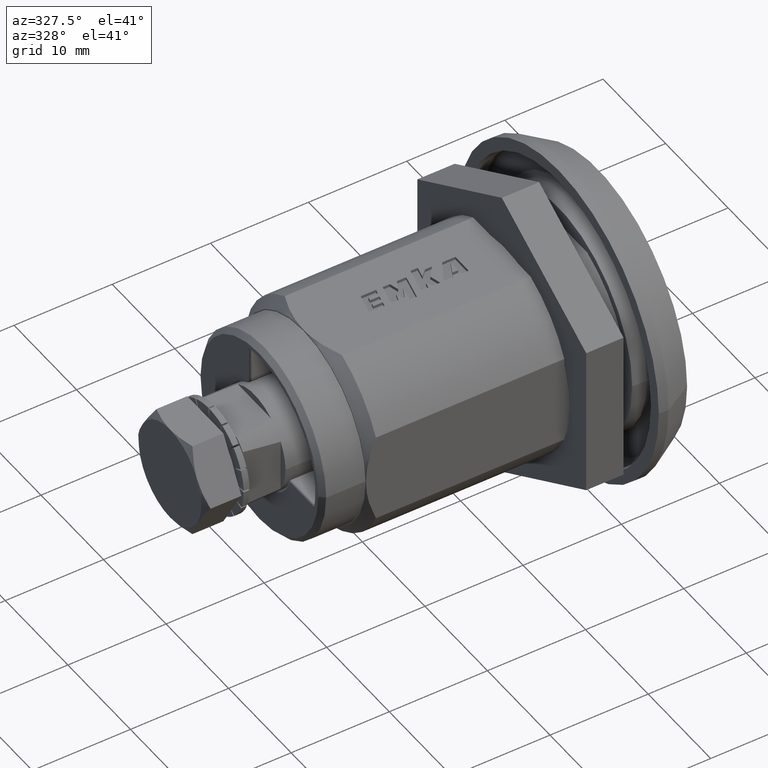
[diagram: clean part render]
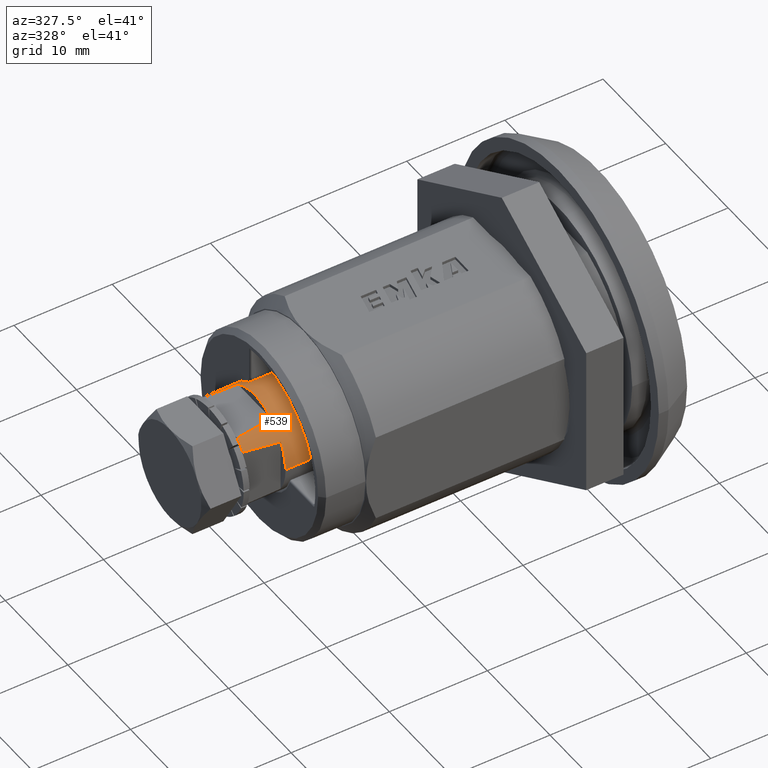
[diagram: same view with one face highlighted and labeled with its STEP entity id]
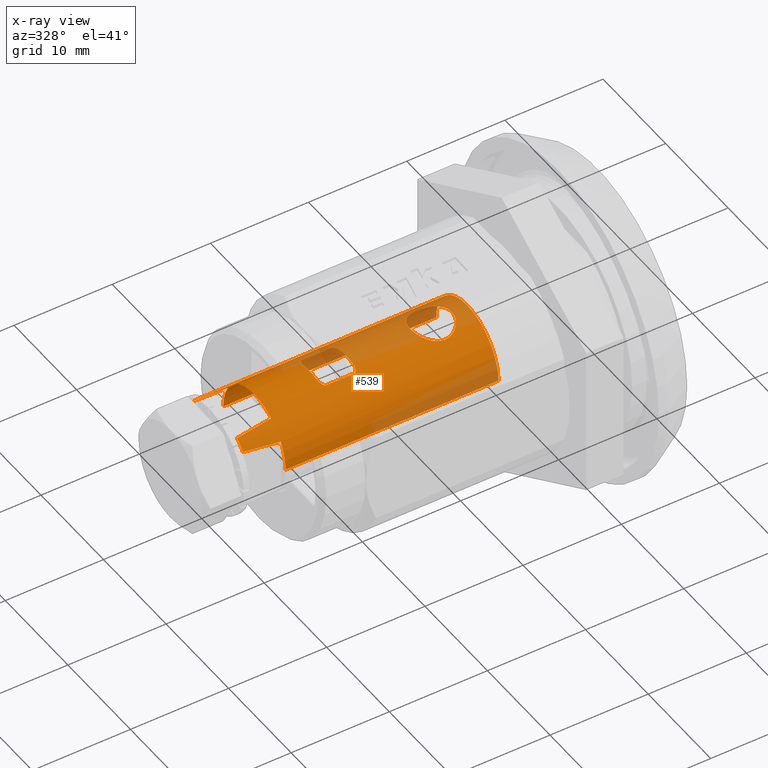
[diagram: x-ray of the same camera — body ghosted, the highlighted face saturated]
A machine part, auxiliary view. The second image highlights one B-rep face of the part: STEP entity #539.
The next image is the same camera in x-ray: the body ghosted, the highlighted face saturated — about 29% of this face is hidden behind the body in this view.
In plain terms, the highlighted cylindrical surface (partial cylindrical patch) has radius 4.975 mm, axis along (1, -0, 0).
Its self-contained STEP definition (entity closure, byte-faithful):
#539=ADVANCED_FACE('',(#3458,#3459,#3460),#3457,.T.);
#3457=CYLINDRICAL_SURFACE('',#7321,4.97500000000E+00);
#3458=FACE_OUTER_BOUND('',#7322,.T.);
#3459=FACE_BOUND('',#7323,.T.);
#3460=FACE_BOUND('',#7324,.T.);
#7318=CARTESIAN_POINT('',(0.00000000000E+00,0.00000000000E+00,1.30000003874E+01));
#7319=DIRECTION('',(-0.00000000000E+00,-0.00000000000E+00,-1.00000000000E+00));
#7320=DIRECTION('',(9.99961923064E-01,8.72653549837E-03,0.00000000000E+00));
#7321=AXIS2_PLACEMENT_3D('',#7318,#7319,#7320);
#7322=EDGE_LOOP('',(#9858,#9859,#9860,#9861,#9862,#9863,#9864,#9865,#9866,#9867,#9868,#9869,#9870));
#7323=EDGE_LOOP('',(#9871,#9872));
#7324=EDGE_LOOP('',(#9873,#9874,#9875,#9876,#9877,#9878,#9879,#9880));
#9858=ORIENTED_EDGE('',*,*,#11146,.T.);
#9859=ORIENTED_EDGE('',*,*,#11151,.T.);
#9860=ORIENTED_EDGE('',*,*,#11152,.F.);
#9861=ORIENTED_EDGE('',*,*,#11069,.F.);
#9862=ORIENTED_EDGE('',*,*,#11071,.F.);
#9863=ORIENTED_EDGE('',*,*,#11053,.F.);
#9864=ORIENTED_EDGE('',*,*,#11048,.F.);
#9865=ORIENTED_EDGE('',*,*,#11095,.F.);
#9866=ORIENTED_EDGE('',*,*,#11046,.F.);
#9867=ORIENTED_EDGE('',*,*,#11052,.F.);
#9868=ORIENTED_EDGE('',*,*,#11065,.F.);
#9869=ORIENTED_EDGE('',*,*,#11067,.F.);
#9870=ORIENTED_EDGE('',*,*,#11153,.T.);
#9871=ORIENTED_EDGE('',*,*,#11088,.T.);
#9872=ORIENTED_EDGE('',*,*,#11085,.T.);
#9873=ORIENTED_EDGE('',*,*,#11133,.T.);
#9874=ORIENTED_EDGE('',*,*,#11138,.T.);
#9875=ORIENTED_EDGE('',*,*,#11139,.T.);
#9876=ORIENTED_EDGE('',*,*,#11142,.F.);
#9877=ORIENTED_EDGE('',*,*,#11110,.T.);
#9878=ORIENTED_EDGE('',*,*,#11108,.T.);
#9879=ORIENTED_EDGE('',*,*,#11100,.T.);
#9880=ORIENTED_EDGE('',*,*,#11098,.F.);
#11046=EDGE_CURVE('',#15629,#15630,#15631,.T.);
#11048=EDGE_CURVE('',#15637,#15644,#15645,.T.);
#11052=EDGE_CURVE('',#15665,#15629,#15672,.T.);
#11053=EDGE_CURVE('',#15644,#15678,#15679,.T.);
#11065=EDGE_CURVE('',#15752,#15665,#15759,.T.);
#11067=EDGE_CURVE('',#15765,#15752,#15772,.T.);
#11069=EDGE_CURVE('',#15779,#15786,#15787,.T.);
#11071=EDGE_CURVE('',#15678,#15779,#15799,.T.);
#11085=EDGE_CURVE('',#15865,#15887,#15894,.T.);
#11088=EDGE_CURVE('',#15887,#15865,#15913,.T.);
#11095=EDGE_CURVE('',#15630,#15637,#15961,.T.);
#11098=EDGE_CURVE('',#15975,#15982,#15983,.T.);
#11100=EDGE_CURVE('',#15995,#15982,#15996,.T.);
#11108=EDGE_CURVE('',#16049,#15995,#16050,.T.);
#11110=EDGE_CURVE('',#16062,#16049,#16063,.T.);
#11133=EDGE_CURVE('',#15975,#16212,#16213,.T.);
#11138=EDGE_CURVE('',#16212,#16239,#16246,.T.);
#11139=EDGE_CURVE('',#16239,#16252,#16253,.T.);
#11142=EDGE_CURVE('',#16062,#16252,#16271,.T.);
#11146=EDGE_CURVE('',#16295,#16296,#16297,.T.);
#11151=EDGE_CURVE('',#16296,#16322,#16329,.T.);
#11152=EDGE_CURVE('',#15786,#16322,#16335,.T.);
#11153=EDGE_CURVE('',#15765,#16295,#16341,.T.);
#15629=VERTEX_POINT('',#21046);
#15630=VERTEX_POINT('',#21047);
#15631=(BOUNDED_CURVE() B_SPLINE_CURVE(3,(#21048,#21049,#21050,#21051),.UNSPECIFIED.,.F.,.F.) B_SPLINE_CURVE_WITH_KNOTS((4,4),(0.00000000000E+00,1.00000000000E+00),.UNSPECIFIED.) CURVE() GEOMETRIC_REPRESENTATION_ITEM() RATIONAL_B_SPLINE_CURVE((1.00000000000E+00,1.00000000000E+00,1.00000000000E+00,1.00000000000E+00)) REPRESENTATION_ITEM('') );
#15637=VERTEX_POINT('',#21052);
#15644=VERTEX_POINT('',#21056);
#15645=(BOUNDED_CURVE() B_SPLINE_CURVE(3,(#21057,#21058,#21059,#21060),.UNSPECIFIED.,.F.,.F.) B_SPLINE_CURVE_WITH_KNOTS((4,4),(0.00000000000E+00,1.00000000000E+00),.UNSPECIFIED.) CURVE() GEOMETRIC_REPRESENTATION_ITEM() RATIONAL_B_SPLINE_CURVE((1.00000000000E+00,1.00000000000E+00,1.00000000000E+00,1.00000000000E+00)) REPRESENTATION_ITEM('') );
#15665=VERTEX_POINT('',#21070);
#15672=CIRCLE('',#21077,4.97500000000E+00);
#15678=VERTEX_POINT('',#21078);
#15679=CIRCLE('',#21082,4.97500000000E+00);
#15752=VERTEX_POINT('',#21127);
#15759=(BOUNDED_CURVE() B_SPLINE_CURVE(3,(#21131,#21132,#21133,#21134),.UNSPECIFIED.,.F.,.F.) B_SPLINE_CURVE_WITH_KNOTS((4,4),(0.00000000000E+00,1.00000000000E+00),.UNSPECIFIED.) CURVE() GEOMETRIC_REPRESENTATION_ITEM() RATIONAL_B_SPLINE_CURVE((1.00000000000E+00,1.00000000000E+00,1.00000000000E+00,1.00000000000E+00)) REPRESENTATION_ITEM('') );
#15765=VERTEX_POINT('',#21135);
#15772=CIRCLE('',#21143,4.97500000000E+00);
#15779=VERTEX_POINT('',#21145);
#15786=VERTEX_POINT('',#21149);
#15787=CIRCLE('',#21153,4.97500000000E+00);
#15799=(BOUNDED_CURVE() B_SPLINE_CURVE(3,(#21158,#21159,#21160,#21161),.UNSPECIFIED.,.F.,.F.) B_SPLINE_CURVE_WITH_KNOTS((4,4),(0.00000000000E+00,1.00000000000E+00),.UNSPECIFIED.) CURVE() GEOMETRIC_REPRESENTATION_ITEM() RATIONAL_B_SPLINE_CURVE((1.00000000000E+00,1.00000000000E+00,1.00000000000E+00,1.00000000000E+00)) REPRESENTATION_ITEM('') );
#15865=VERTEX_POINT('',#21266);
#15887=VERTEX_POINT('',#21297);
#15894=(BOUNDED_CURVE() B_SPLINE_CURVE(3,(#21301,#21302,#21303,#21304,#21305,#21306,#21307,#21308,#21309,#21310,#21311,#21312,#21313,#21314,#21315,#21316,#21317,#21318,#21319,#21320),.UNSPECIFIED.,.F.,.F.) B_SPLINE_CURVE_WITH_KNOTS((4,1,1,1,1,1,1,1,1,1,1,1,1,1,1,1,1,4),(0.00000000000E+00,5.88235294118E-02,1.17647058824E-01,1.76470588235E-01,2.35294117647E-01,2.94117647059E-01,3.52941176471E-01,4.11764705882E-01,4.70588235294E-01,5.29411764706E-01,5.88235294118E-01,6.47058823529E-01,7.05882352941E-01,7.64705882353E-01,8.23529411765E-01,8.82352941176E-01,9.41176470588E-01,1.00000000000E+00),.UNSPECIFIED.) CURVE() GEOMETRIC_REPRESENTATION_ITEM() RATIONAL_B_SPLINE_CURVE((1.00000000000E+00,1.00000000000E+00,1.00000000000E+00,1.00000000000E+00,1.00000000000E+00,1.00000000000E+00,1.00000000000E+00,1.00000000000E+00,1.00000000000E+00,1.00000000000E+00,1.00000000000E+00,1.00000000000E+00,1.00000000000E+00,1.00000000000E+00,1.00000000000E+00,1.00000000000E+00,1.00000000000E+00,1.00000000000E+00,1.00000000000E+00,1.00000000000E+00)) REPRESENTATION_ITEM('') );
#15913=(BOUNDED_CURVE() B_SPLINE_CURVE(3,(#21346,#21347,#21348,#21349,#21350,#21351,#21352,#21353,#21354,#21355,#21356,#21357,#21358,#21359,#21360,#21361,#21362,#21363,#21364,#21365),.UNSPECIFIED.,.F.,.F.) B_SPLINE_CURVE_WITH_KNOTS((4,1,1,1,1,1,1,1,1,1,1,1,1,1,1,1,1,4),(0.00000000000E+00,5.88235294118E-02,1.17647058824E-01,1.76470588235E-01,2.35294117647E-01,2.94117647059E-01,3.52941176471E-01,4.11764705882E-01,4.70588235294E-01,5.29411764706E-01,5.88235294118E-01,6.47058823529E-01,7.05882352941E-01,7.64705882353E-01,8.23529411765E-01,8.82352941176E-01,9.41176470588E-01,1.00000000000E+00),.UNSPECIFIED.) CURVE() GEOMETRIC_REPRESENTATION_ITEM() RATIONAL_B_SPLINE_CURVE((1.00000000000E+00,1.00000000000E+00,1.00000000000E+00,1.00000000000E+00,1.00000000000E+00,1.00000000000E+00,1.00000000000E+00,1.00000000000E+00,1.00000000000E+00,1.00000000000E+00,1.00000000000E+00,1.00000000000E+00,1.00000000000E+00,1.00000000000E+00,1.00000000000E+00,1.00000000000E+00,1.00000000000E+00,1.00000000000E+00,1.00000000000E+00,1.00000000000E+00)) REPRESENTATION_ITEM('') );
#15961=CIRCLE('',#21399,4.97500000000E+00);
#15975=VERTEX_POINT('',#21405);
#15982=VERTEX_POINT('',#21410);
#15983=LINE('',#21411,#21412);
#15995=VERTEX_POINT('',#21418);
#15996=(BOUNDED_CURVE() B_SPLINE_CURVE(3,(#21419,#21420,#21421,#21422,#21423,#21424,#21425,#21426),.UNSPECIFIED.,.F.,.F.) B_SPLINE_CURVE_WITH_KNOTS((4,1,1,1,1,4),(0.00000000000E+00,2.00000000000E-01,4.00000000000E-01,6.00000000000E-01,8.00000000000E-01,1.00000000000E+00),.UNSPECIFIED.) CURVE() GEOMETRIC_REPRESENTATION_ITEM() RATIONAL_B_SPLINE_CURVE((1.00000000000E+00,1.00000000000E+00,1.00000000000E+00,1.00000000000E+00,1.00000000000E+00,1.00000000000E+00,1.00000000000E+00,1.00000000000E+00)) REPRESENTATION_ITEM('') );
#16049=VERTEX_POINT('',#21456);
#16050=CIRCLE('',#21460,4.97500000000E+00);
#16062=VERTEX_POINT('',#21465);
#16063=(BOUNDED_CURVE() B_SPLINE_CURVE(3,(#21466,#21467,#21468,#21469,#21470,#21471,#21472,#21473),.UNSPECIFIED.,.F.,.F.) B_SPLINE_CURVE_WITH_KNOTS((4,1,1,1,1,4),(0.00000000000E+00,2.00000000000E-01,4.00000000000E-01,6.00000000000E-01,8.00000000000E-01,1.00000000000E+00),.UNSPECIFIED.) CURVE() GEOMETRIC_REPRESENTATION_ITEM() RATIONAL_B_SPLINE_CURVE((1.00000000000E+00,1.00000000000E+00,1.00000000000E+00,1.00000000000E+00,1.00000000000E+00,1.00000000000E+00,1.00000000000E+00,1.00000000000E+00)) REPRESENTATION_ITEM('') );
#16212=VERTEX_POINT('',#21562);
#16213=(BOUNDED_CURVE() B_SPLINE_CURVE(3,(#21563,#21564,#21565,#21566,#21567,#21568,#21569,#21570),.UNSPECIFIED.,.F.,.F.) B_SPLINE_CURVE_WITH_KNOTS((4,1,1,1,1,4),(0.00000000000E+00,2.00000000000E-01,4.00000000000E-01,6.00000000000E-01,8.00000000000E-01,1.00000000000E+00),.UNSPECIFIED.) CURVE() GEOMETRIC_REPRESENTATION_ITEM() RATIONAL_B_SPLINE_CURVE((1.00000000000E+00,1.00000000000E+00,1.00000000000E+00,1.00000000000E+00,1.00000000000E+00,1.00000000000E+00,1.00000000000E+00,1.00000000000E+00)) REPRESENTATION_ITEM('') );
#16239=VERTEX_POINT('',#21583);
#16246=CIRCLE('',#21591,4.97500000000E+00);
#16252=VERTEX_POINT('',#21592);
#16253=(BOUNDED_CURVE() B_SPLINE_CURVE(3,(#21593,#21594,#21595,#21596,#21597,#21598,#21599,#21600),.UNSPECIFIED.,.F.,.F.) B_SPLINE_CURVE_WITH_KNOTS((4,1,1,1,1,4),(0.00000000000E+00,2.00000000000E-01,4.00000000000E-01,6.00000000000E-01,8.00000000000E-01,1.00000000000E+00),.UNSPECIFIED.) CURVE() GEOMETRIC_REPRESENTATION_ITEM() RATIONAL_B_SPLINE_CURVE((1.00000000000E+00,1.00000000000E+00,1.00000000000E+00,1.00000000000E+00,1.00000000000E+00,1.00000000000E+00,1.00000000000E+00,1.00000000000E+00)) REPRESENTATION_ITEM('') );
#16271=LINE('',#21609,#21610);
#16295=VERTEX_POINT('',#21624);
#16296=VERTEX_POINT('',#21625);
#16297=(BOUNDED_CURVE() B_SPLINE_CURVE(2,(#21626,#21627,#21628,#21629,#21630),.UNSPECIFIED.,.F.,.F.) B_SPLINE_CURVE_WITH_KNOTS((3,2,3),(5.61577934159E-04,5.00000000000E-01,1.00000000000E+00),.UNSPECIFIED.) CURVE() GEOMETRIC_REPRESENTATION_ITEM() RATIONAL_B_SPLINE_CURVE((1.00000000000E+00,7.08086643762E-01,1.00000000000E+00,7.08086643762E-01,1.00000000000E+00)) REPRESENTATION_ITEM('') );
#16322=VERTEX_POINT('',#21639);
#16329=(BOUNDED_CURVE() B_SPLINE_CURVE(2,(#21644,#21645,#21646),.UNSPECIFIED.,.F.,.F.) B_SPLINE_CURVE_WITH_KNOTS((3,3),(0.00000000000E+00,1.00000000000E+00),.UNSPECIFIED.) CURVE() GEOMETRIC_REPRESENTATION_ITEM() RATIONAL_B_SPLINE_CURVE((1.00000000000E+00,9.99993640015E-01,1.00000000000E+00)) REPRESENTATION_ITEM('') );
#16335=(BOUNDED_CURVE() B_SPLINE_CURVE(1,(#21647,#21648),.UNSPECIFIED.,.F.,.F.) B_SPLINE_CURVE_WITH_KNOTS((2,2),(2.04724408687E-01,9.16666665745E-01),.UNSPECIFIED.) CURVE() GEOMETRIC_REPRESENTATION_ITEM() RATIONAL_B_SPLINE_CURVE((1.00000000000E+00,1.00000000000E+00)) REPRESENTATION_ITEM('') );
#16341=(BOUNDED_CURVE() B_SPLINE_CURVE(1,(#21649,#21650),.UNSPECIFIED.,.F.,.F.) B_SPLINE_CURVE_WITH_KNOTS((2,2),(2.04724409449E-01,9.16666666667E-01),.UNSPECIFIED.) CURVE() GEOMETRIC_REPRESENTATION_ITEM() RATIONAL_B_SPLINE_CURVE((7.50000000000E-01,7.50000000000E-01)) REPRESENTATION_ITEM('') );
#21046=CARTESIAN_POINT('',(-3.02458674863E+00,-3.95000000000E+00,2.57000000000E+01));
#21047=CARTESIAN_POINT('',(-2.66657551928E+00,-4.20000000000E+00,2.20000000000E+01));
#21048=CARTESIAN_POINT('',(-3.02458674863E+00,-3.95000000000E+00,2.57000000000E+01));
#21049=CARTESIAN_POINT('',(-2.91566739411E+00,-4.03340152819E+00,2.44656573828E+01));
#21050=CARTESIAN_POINT('',(-2.79770838662E+00,-4.11674388242E+00,2.32321905402E+01));
#21051=CARTESIAN_POINT('',(-2.66657551928E+00,-4.20000000000E+00,2.20000000000E+01));
#21052=CARTESIAN_POINT('',(2.66657551928E+00,-4.20000000000E+00,2.20000000000E+01));
#21056=CARTESIAN_POINT('',(3.02458674863E+00,-3.95000000000E+00,2.57000000000E+01));
#21057=CARTESIAN_POINT('',(2.66657551928E+00,-4.20000000000E+00,2.20000000000E+01));
#21058=CARTESIAN_POINT('',(2.79770838662E+00,-4.11674388242E+00,2.32321905402E+01));
#21059=CARTESIAN_POINT('',(2.91566739411E+00,-4.03340152819E+00,2.44656573828E+01));
#21060=CARTESIAN_POINT('',(3.02458674863E+00,-3.95000000000E+00,2.57000000000E+01));
#21070=CARTESIAN_POINT('',(-3.95000000000E+00,-3.02458674863E+00,2.57000000000E+01));
#21074=CARTESIAN_POINT('',(0.00000000000E+00,0.00000000000E+00,2.57000000000E+01));
#21075=DIRECTION('',(0.00000000000E+00,0.00000000000E+00,1.00000000000E+00));
#21076=DIRECTION('',(7.93969849246E-01,6.07957135403E-01,-0.00000000000E+00));
#21077=AXIS2_PLACEMENT_3D('',#21074,#21075,#21076);
#21078=CARTESIAN_POINT('',(3.95000000000E+00,-3.02458674863E+00,2.57000000000E+01));
#21079=CARTESIAN_POINT('',(0.00000000000E+00,0.00000000000E+00,2.57000000000E+01));
#21080=DIRECTION('',(0.00000000000E+00,0.00000000000E+00,1.00000000000E+00));
#21081=DIRECTION('',(-6.07957135403E-01,7.93969849246E-01,-0.00000000000E+00));
#21082=AXIS2_PLACEMENT_3D('',#21079,#21080,#21081);
#21127=CARTESIAN_POINT('',(-4.20000000000E+00,-2.66657551928E+00,2.20000000000E+01));
#21131=CARTESIAN_POINT('',(-4.20000000000E+00,-2.66657551928E+00,2.20000000000E+01));
#21132=CARTESIAN_POINT('',(-4.11674388242E+00,-2.79770838662E+00,2.32321905402E+01));
#21133=CARTESIAN_POINT('',(-4.03340152819E+00,-2.91566739411E+00,2.44656573828E+01));
#21134=CARTESIAN_POINT('',(-3.95000000000E+00,-3.02458674863E+00,2.57000000000E+01));
#21135=CARTESIAN_POINT('',(-4.97477722261E+00,-4.70806268258E-02,2.20000000000E+01));
#21140=CARTESIAN_POINT('',(0.00000000000E+00,0.00000000000E+00,2.20000000000E+01));
#21141=DIRECTION('',(0.00000000000E+00,0.00000000000E+00,1.00000000000E+00));
#21142=DIRECTION('',(1.00000000000E+00,-0.00000000000E+00,-0.00000000000E+00));
#21143=AXIS2_PLACEMENT_3D('',#21140,#21141,#21142);
#21145=CARTESIAN_POINT('',(4.20000000000E+00,-2.66657551928E+00,2.20000000000E+01));
#21149=CARTESIAN_POINT('',(4.97481057446E+00,4.34136875900E-02,2.20000000000E+01));
#21150=CARTESIAN_POINT('',(0.00000000000E+00,0.00000000000E+00,2.20000000000E+01));
#21151=DIRECTION('',(0.00000000000E+00,0.00000000000E+00,1.00000000000E+00));
#21152=DIRECTION('',(-8.44221105528E-01,5.35995079251E-01,-0.00000000000E+00));
#21153=AXIS2_PLACEMENT_3D('',#21150,#21151,#21152);
#21158=CARTESIAN_POINT('',(3.95000000000E+00,-3.02458674863E+00,2.57000000000E+01));
#21159=CARTESIAN_POINT('',(4.03340152819E+00,-2.91566739411E+00,2.44656573828E+01));
#21160=CARTESIAN_POINT('',(4.11674388242E+00,-2.79770838662E+00,2.32321905402E+01));
#21161=CARTESIAN_POINT('',(4.20000000000E+00,-2.66657551928E+00,2.20000000000E+01));
#21266=CARTESIAN_POINT('',(-5.73724372865E-11,-4.97500126761E+00,1.90000126757E+00));
#21297=CARTESIAN_POINT('',(3.29380960220E-09,-4.97500848081E+00,6.09999151922E+00));
#21301=CARTESIAN_POINT('',(-5.73724372865E-11,-4.97500126761E+00,1.90000126757E+00));
#21302=CARTESIAN_POINT('',(-1.37568317398E-01,-4.97500126761E+00,1.90000107855E+00));
#21303=CARTESIAN_POINT('',(-4.10586538262E-01,-4.96374077446E+00,1.92338648402E+00));
#21304=CARTESIAN_POINT('',(-8.18666564177E-01,-4.91269444534E+00,2.03238563555E+00));
#21305=CARTESIAN_POINT('',(-1.19971303472E+00,-4.83305534836E+00,2.21297200934E+00));
#21306=CARTESIAN_POINT('',(-1.54486239635E+00,-4.73305505268E+00,2.46394636339E+00));
#21307=CARTESIAN_POINT('',(-1.83145473327E+00,-4.62815727262E+00,2.77452778228E+00));
#21308=CARTESIAN_POINT('',(-2.03821655520E+00,-4.53953579374E+00,3.11149758889E+00));
#21309=CARTESIAN_POINT('',(-2.17212638335E+00,-4.47618821600E+00,3.46292164819E+00));
#21310=CARTESIAN_POINT('',(-2.23720683942E+00,-4.44360911709E+00,3.81899326521E+00));
#21311=CARTESIAN_POINT('',(-2.23770816473E+00,-4.44335688616E+00,4.17515807621E+00));
#21312=CARTESIAN_POINT('',(-2.17384252574E+00,-4.47533319887E+00,4.53078569551E+00));
#21313=CARTESIAN_POINT('',(-2.04069890136E+00,-4.53845756657E+00,4.88431296954E+00));
#21314=CARTESIAN_POINT('',(-1.83095528406E+00,-4.62835238794E+00,5.22606933600E+00));
#21315=CARTESIAN_POINT('',(-1.54829480454E+00,-4.73181464313E+00,5.53251872302E+00));
#21316=CARTESIAN_POINT('',(-1.20488827159E+00,-4.83184469589E+00,5.78426745946E+00));
#21317=CARTESIAN_POINT('',(-8.18662704833E-01,-4.91280280169E+00,5.96783503931E+00));
#21318=CARTESIAN_POINT('',(-4.09829786213E-01,-4.96378725553E+00,6.07678116816E+00));
#21319=CARTESIAN_POINT('',(-1.37064657151E-01,-4.97500848081E+00,6.09993911281E+00));
#21320=CARTESIAN_POINT('',(3.29380960220E-09,-4.97500848081E+00,6.09999151922E+00));
#21346=CARTESIAN_POINT('',(3.29380960220E-09,-4.97500848081E+00,6.09999151922E+00));
#21347=CARTESIAN_POINT('',(1.37712450098E-01,-4.97500848081E+00,6.09999382448E+00));
#21348=CARTESIAN_POINT('',(4.11014816827E-01,-4.96371515751E+00,6.07656921281E+00));
#21349=CARTESIAN_POINT('',(8.19555308685E-01,-4.91255766076E+00,5.96731693372E+00));
#21350=CARTESIAN_POINT('',(1.20092152392E+00,-4.83276639090E+00,5.78635602229E+00));
#21351=CARTESIAN_POINT('',(1.54648712000E+00,-4.73253064201E+00,5.53466851390E+00));
#21352=CARTESIAN_POINT('',(1.83298628065E+00,-4.62754517109E+00,5.22347224704E+00));
#21353=CARTESIAN_POINT('',(2.03938868202E+00,-4.53900363613E+00,4.88614226774E+00));
#21354=CARTESIAN_POINT('',(2.17288985722E+00,-4.47581389365E+00,4.53439504041E+00));
#21355=CARTESIAN_POINT('',(2.23755898949E+00,-4.44343072994E+00,4.17776913586E+00));
#21356=CARTESIAN_POINT('',(2.23738436270E+00,-4.44351973292E+00,3.82022580648E+00));
#21357=CARTESIAN_POINT('',(2.17230853783E+00,-4.47610003492E+00,3.46345099351E+00));
#21358=CARTESIAN_POINT('',(2.03833988109E+00,-4.53948152312E+00,3.11175696164E+00));
#21359=CARTESIAN_POINT('',(1.83167627887E+00,-4.62806254117E+00,2.77482978534E+00));
#21360=CARTESIAN_POINT('',(1.54566148268E+00,-4.73277809954E+00,2.46475806683E+00));
#21361=CARTESIAN_POINT('',(1.20087937664E+00,-4.83277039250E+00,2.21362245528E+00));
#21362=CARTESIAN_POINT('',(8.19360221910E-01,-4.91258844921E+00,2.03261709910E+00));
#21363=CARTESIAN_POINT('',(4.11170825110E-01,-4.96369867640E+00,1.92346749051E+00));
#21364=CARTESIAN_POINT('',(1.37781936584E-01,-4.97500126761E+00,1.90000776704E+00));
#21365=CARTESIAN_POINT('',(-5.73724372865E-11,-4.97500126761E+00,1.90000126757E+00));
#21396=CARTESIAN_POINT('',(0.00000000000E+00,0.00000000000E+00,2.20000000000E+01));
#21397=DIRECTION('',(0.00000000000E+00,0.00000000000E+00,1.00000000000E+00));
#21398=DIRECTION('',(5.35995079251E-01,8.44221105528E-01,-0.00000000000E+00));
#21399=AXIS2_PLACEMENT_3D('',#21396,#21397,#21398);
#21405=CARTESIAN_POINT('',(1.91565850102E+00,-4.59139167437E+00,1.29500000000E+01));
#21410=CARTESIAN_POINT('',(1.91565850102E+00,-4.59139167437E+00,1.60500000000E+01));
#21411=CARTESIAN_POINT('',(1.91565850102E+00,-4.59139167437E+00,1.29500000000E+01));
#21412=VECTOR('',#21413,3.10000000000E+00);
#21413=DIRECTION('',(0.00000000000E+00,0.00000000000E+00,1.00000000000E+00));
#21418=CARTESIAN_POINT('',(1.28265928786E+00,-4.80680872838E+00,1.63500000000E+01));
#21419=CARTESIAN_POINT('',(1.28265928788E+00,-4.80680872838E+00,1.63500000000E+01));
#21420=CARTESIAN_POINT('',(1.32066456391E+00,-4.79666731792E+00,1.63500000000E+01));
#21421=CARTESIAN_POINT('',(1.39891749330E+00,-4.77483453055E+00,1.63411926405E+01));
#21422=CARTESIAN_POINT('',(1.52464303020E+00,-4.73625183897E+00,1.63008249324E+01));
#21423=CARTESIAN_POINT('',(1.65286927958E+00,-4.69306771671E+00,1.62356648033E+01));
#21424=CARTESIAN_POINT('',(1.78267897589E+00,-4.64533891086E+00,1.61502279747E+01));
#21425=CARTESIAN_POINT('',(1.87052534505E+00,-4.61022250390E+00,1.60841934123E+01));
#21426=CARTESIAN_POINT('',(1.91565850102E+00,-4.59139167437E+00,1.60500000000E+01));
#21456=CARTESIAN_POINT('',(-1.28265928786E+00,-4.80680872838E+00,1.63500000000E+01));
#21457=CARTESIAN_POINT('',(0.00000000000E+00,0.00000000000E+00,1.63500000000E+01));
#21458=DIRECTION('',(0.00000000000E+00,0.00000000000E+00,1.00000000000E+00));
#21459=DIRECTION('',(2.57820962385E-01,9.66192709223E-01,-0.00000000000E+00));
#21460=AXIS2_PLACEMENT_3D('',#21457,#21458,#21459);
#21465=CARTESIAN_POINT('',(-1.91565850102E+00,-4.59139167437E+00,1.60500000000E+01));
#21466=CARTESIAN_POINT('',(-1.91565850102E+00,-4.59139167437E+00,1.60500000000E+01));
#21467=CARTESIAN_POINT('',(-1.87053557591E+00,-4.61021823529E+00,1.60841856613E+01));
#21468=CARTESIAN_POINT('',(-1.78270369905E+00,-4.64532931010E+00,1.61502098186E+01));
#21469=CARTESIAN_POINT('',(-1.65289443525E+00,-4.69305895459E+00,1.62356503717E+01));
#21470=CARTESIAN_POINT('',(-1.52465433592E+00,-4.73624834455E+00,1.63008210810E+01));
#21471=CARTESIAN_POINT('',(-1.39891806732E+00,-4.77483442004E+00,1.63411929632E+01));
#21472=CARTESIAN_POINT('',(-1.32066394983E+00,-4.79666748179E+00,1.63500000000E+01));
#21473=CARTESIAN_POINT('',(-1.28265928787E+00,-4.80680872838E+00,1.63500000000E+01));
#21562=CARTESIAN_POINT('',(1.28265928786E+00,-4.80680872838E+00,1.26500000000E+01));
#21563=CARTESIAN_POINT('',(1.91565850102E+00,-4.59139167437E+00,1.29500000000E+01));
#21564=CARTESIAN_POINT('',(1.87053557591E+00,-4.61021823529E+00,1.29158143387E+01));
#21565=CARTESIAN_POINT('',(1.78270369905E+00,-4.64532931010E+00,1.28497901814E+01));
#21566=CARTESIAN_POINT('',(1.65289443525E+00,-4.69305895459E+00,1.27643496283E+01));
#21567=CARTESIAN_POINT('',(1.52465433592E+00,-4.73624834455E+00,1.26991789191E+01));
#21568=CARTESIAN_POINT('',(1.39891806732E+00,-4.77483442004E+00,1.26588070368E+01));
#21569=CARTESIAN_POINT('',(1.32066394983E+00,-4.79666748179E+00,1.26500000000E+01));
#21570=CARTESIAN_POINT('',(1.28265928787E+00,-4.80680872838E+00,1.26500000000E+01));
#21583=CARTESIAN_POINT('',(-1.28265928786E+00,-4.80680872838E+00,1.26500000000E+01));
#21588=CARTESIAN_POINT('',(0.00000000000E+00,0.00000000000E+00,1.26500000000E+01));
#21589=DIRECTION('',(0.00000000000E+00,0.00000000000E+00,-1.00000000000E+00));
#21590=DIRECTION('',(-2.57820962385E-01,9.66192709223E-01,-0.00000000000E+00));
#21591=AXIS2_PLACEMENT_3D('',#21588,#21589,#21590);
#21592=CARTESIAN_POINT('',(-1.91565850102E+00,-4.59139167437E+00,1.29500000000E+01));
#21593=CARTESIAN_POINT('',(-1.28265928787E+00,-4.80680872838E+00,1.26500000000E+01));
#21594=CARTESIAN_POINT('',(-1.32066456389E+00,-4.79666731793E+00,1.26500000000E+01));
#21595=CARTESIAN_POINT('',(-1.39891749330E+00,-4.77483453055E+00,1.26588073595E+01));
#21596=CARTESIAN_POINT('',(-1.52464303019E+00,-4.73625183898E+00,1.26991750676E+01));
#21597=CARTESIAN_POINT('',(-1.65286927958E+00,-4.69306771670E+00,1.27643351967E+01));
#21598=CARTESIAN_POINT('',(-1.78267897589E+00,-4.64533891085E+00,1.28497720252E+01));
#21599=CARTESIAN_POINT('',(-1.87052534505E+00,-4.61022250389E+00,1.29158065877E+01));
#21600=CARTESIAN_POINT('',(-1.91565850102E+00,-4.59139167437E+00,1.29500000000E+01));
#21609=CARTESIAN_POINT('',(-1.91565850102E+00,-4.59139167437E+00,1.60500000000E+01));
#21610=VECTOR('',#21611,3.10000000000E+00);
#21611=DIRECTION('',(0.00000000000E+00,0.00000000000E+00,-1.00000000000E+00));
#21624=CARTESIAN_POINT('',(-4.97481056724E+00,-4.34145141044E-02,3.00000000000E-01));
#21625=CARTESIAN_POINT('',(4.97500000000E+00,1.48029736617E-15,3.00000000000E-01));
#21626=CARTESIAN_POINT('',(-4.97481056724E+00,-4.34145141044E-02,3.00000000000E-01));
#21627=CARTESIAN_POINT('',(-4.93944911803E+00,-4.99661743850E+00,3.00000000000E-01));
#21628=CARTESIAN_POINT('',(2.17250423459E-02,-4.97495256485E+00,3.00000000000E-01));
#21629=CARTESIAN_POINT('',(4.98289920272E+00,-4.95328769121E+00,3.00000000000E-01));
#21630=CARTESIAN_POINT('',(4.97500000000E+00,1.48029736617E-15,3.00000000000E-01));
#21639=CARTESIAN_POINT('',(4.97481057446E+00,4.34136875901E-02,3.00000000000E-01));
#21644=CARTESIAN_POINT('',(4.97500000000E+00,1.48029736617E-15,3.00000000000E-01));
#21645=CARTESIAN_POINT('',(4.97496541041E+00,2.56709075119E-02,3.00000000000E-01));
#21646=CARTESIAN_POINT('',(4.97481057446E+00,4.34136875900E-02,3.00000000000E-01));
#21647=CARTESIAN_POINT('',(4.97481056724E+00,4.34145141044E-02,2.20000000232E+01));
#21648=CARTESIAN_POINT('',(4.97481056724E+00,4.34145141044E-02,3.00000028090E-01));
#21649=CARTESIAN_POINT('',(-4.97481056724E+00,-4.34145141044E-02,2.20000000000E+01));
#21650=CARTESIAN_POINT('',(-4.97481056724E+00,-4.34145141044E-02,3.00000000000E-01));